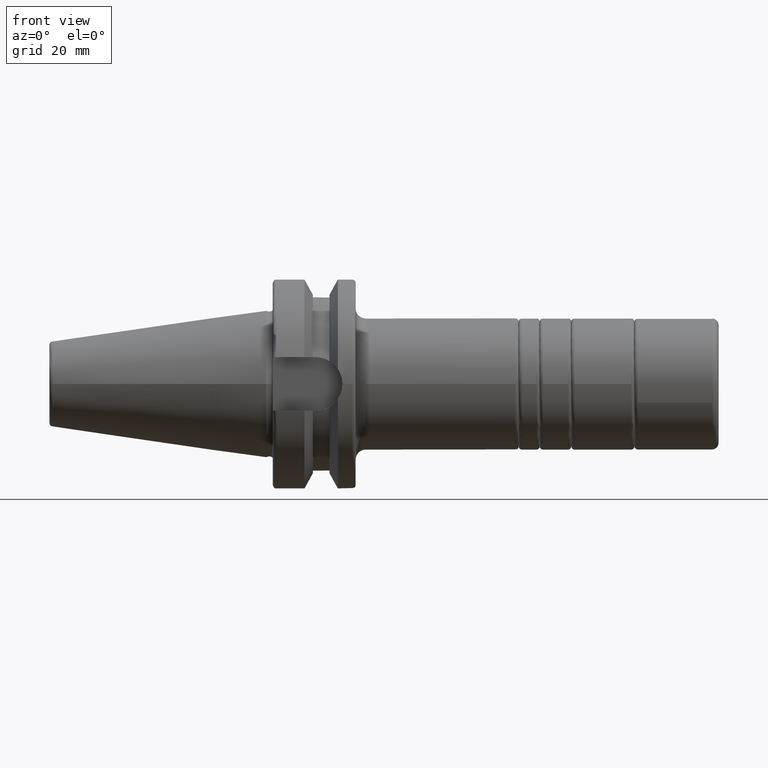
[diagram: clean part render]
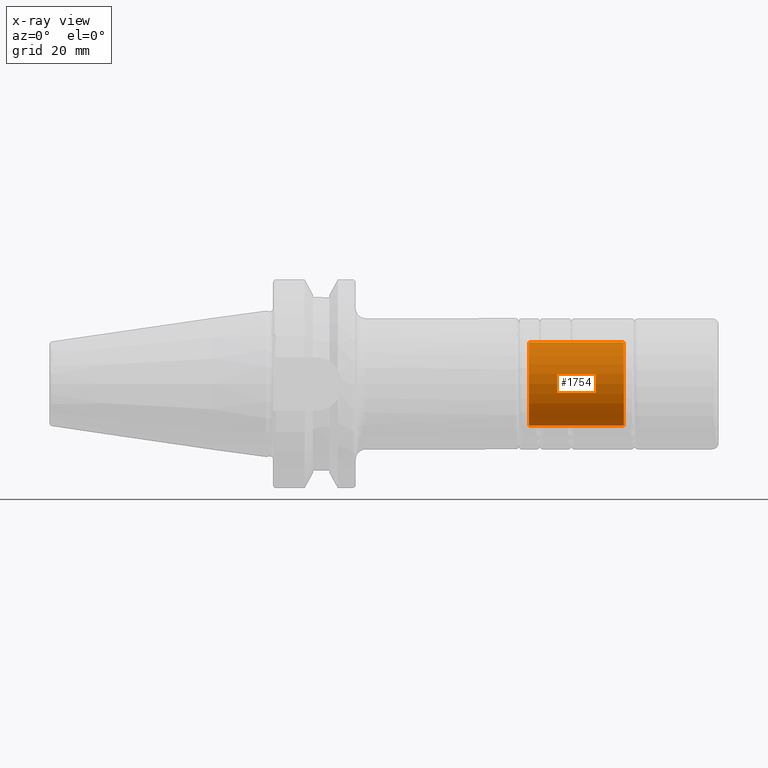
[diagram: x-ray — body ghosted, one internal face saturated and labeled with its STEP entity id]
A machine part, front view, then the same camera in x-ray: the body is ghosted and one INTERNAL B-rep face — a face not visible from any outside direction — is saturated and labeled: STEP entity #1754.
In plain terms, the highlighted cylindrical surface (bore or boss wall) has radius 12.7 mm, axis along (1, 0, 0).
Its self-contained STEP definition (entity closure, byte-faithful):
#176=FACE_OUTER_BOUND('',#285,.T.);
#285=EDGE_LOOP('',(#1217,#1218,#1219,#1220,#1221,#1222,#1223,#1224,#1225,
#1226,#1227));
#407=CIRCLE('',#2004,12.7);
#408=CIRCLE('',#2005,12.7);
#409=CIRCLE('',#2006,12.7);
#533=LINE('',#2871,#633);
#536=LINE('',#2877,#636);
#539=LINE('',#2926,#639);
#633=VECTOR('',#2254,10.);
#636=VECTOR('',#2259,10.);
#639=VECTOR('',#2272,12.7);
#731=B_SPLINE_CURVE_WITH_KNOTS('',3,(#2843,#2844,#2845,#2846,#2847,#2848,
#2849,#2850,#2851,#2852),.UNSPECIFIED.,.F.,.F.,(4,2,2,2,4),(0.,0.120157313671167,
0.240314627342334,0.360455140880268,0.480595654418201),.UNSPECIFIED.);
#732=B_SPLINE_CURVE_WITH_KNOTS('',3,(#2859,#2860,#2861,#2862,#2863,#2864,
#2865,#2866,#2867,#2868),.UNSPECIFIED.,.F.,.F.,(4,2,2,2,4),(0.480595654418201,
0.600736167956134,0.720876681494067,0.841033995165235,0.961191308836402),
 .UNSPECIFIED.);
#733=B_SPLINE_CURVE_WITH_KNOTS('',3,(#2883,#2884,#2885,#2886),
 .UNSPECIFIED.,.F.,.F.,(4,4),(-0.103736205813407,0.),.UNSPECIFIED.);
#737=B_SPLINE_CURVE_WITH_KNOTS('',3,(#2916,#2917,#2918,#2919),
 .UNSPECIFIED.,.F.,.F.,(4,4),(0.961191308836402,1.06492751477734),
 .UNSPECIFIED.);
#753=VERTEX_POINT('',#2841);
#754=VERTEX_POINT('',#2842);
#757=VERTEX_POINT('',#2857);
#758=VERTEX_POINT('',#2870);
#760=VERTEX_POINT('',#2876);
#762=VERTEX_POINT('',#2882);
#765=VERTEX_POINT('',#2909);
#766=VERTEX_POINT('',#2923);
#767=VERTEX_POINT('',#2925);
#928=EDGE_CURVE('',#753,#754,#731,.T.);
#932=EDGE_CURVE('',#754,#757,#732,.T.);
#933=EDGE_CURVE('',#757,#758,#533,.T.);
#936=EDGE_CURVE('',#760,#753,#536,.T.);
#939=EDGE_CURVE('',#762,#760,#733,.T.);
#943=EDGE_CURVE('',#758,#765,#737,.T.);
#945=EDGE_CURVE('',#766,#766,#407,.T.);
#946=EDGE_CURVE('',#766,#767,#539,.T.);
#947=EDGE_CURVE('',#767,#762,#408,.T.);
#948=EDGE_CURVE('',#765,#767,#409,.T.);
#1217=ORIENTED_EDGE('',*,*,#945,.F.);
#1218=ORIENTED_EDGE('',*,*,#946,.T.);
#1219=ORIENTED_EDGE('',*,*,#947,.T.);
#1220=ORIENTED_EDGE('',*,*,#939,.T.);
#1221=ORIENTED_EDGE('',*,*,#936,.T.);
#1222=ORIENTED_EDGE('',*,*,#928,.T.);
#1223=ORIENTED_EDGE('',*,*,#932,.T.);
#1224=ORIENTED_EDGE('',*,*,#933,.T.);
#1225=ORIENTED_EDGE('',*,*,#943,.T.);
#1226=ORIENTED_EDGE('',*,*,#948,.T.);
#1227=ORIENTED_EDGE('',*,*,#946,.F.);
#1722=CYLINDRICAL_SURFACE('',#2003,12.7);
#1754=ADVANCED_FACE('',(#176),#1722,.T.);
#2003=AXIS2_PLACEMENT_3D('',#2922,#2268,#2269);
#2004=AXIS2_PLACEMENT_3D('',#2924,#2270,#2271);
#2005=AXIS2_PLACEMENT_3D('',#2927,#2273,#2274);
#2006=AXIS2_PLACEMENT_3D('',#2928,#2275,#2276);
#2254=DIRECTION('',(-1.,0.,0.));
#2259=DIRECTION('',(1.,0.,0.));
#2268=DIRECTION('center_axis',(1.,0.,0.));
#2269=DIRECTION('ref_axis',(0.,1.,0.));
#2270=DIRECTION('center_axis',(1.,0.,0.));
#2271=DIRECTION('ref_axis',(0.,0.,-1.));
#2272=DIRECTION('',(-1.,0.,0.));
#2273=DIRECTION('center_axis',(1.,0.,0.));
#2274=DIRECTION('ref_axis',(0.,0.,-1.));
#2275=DIRECTION('center_axis',(1.,0.,0.));
#2276=DIRECTION('ref_axis',(0.,0.,-1.));
#2841=CARTESIAN_POINT('',(102.025,12.2967221242085,-3.17500000000001));
#2842=CARTESIAN_POINT('',(105.2,12.7,9.86076131526265E-30));
#2843=CARTESIAN_POINT('Ctrl Pts',(102.025,12.2967221242085,-3.17500000000001));
#2844=CARTESIAN_POINT('Ctrl Pts',(102.425524378904,12.2967221242085,-3.17500000000001));
#2845=CARTESIAN_POINT('Ctrl Pts',(102.851521422933,12.3183289150355,-3.09460599673562));
#2846=CARTESIAN_POINT('Ctrl Pts',(103.633234924972,12.395342169481,-2.77007315274374));
#2847=CARTESIAN_POINT('Ctrl Pts',(103.989107243188,12.4495261713938,-2.52602081734698));
#2848=CARTESIAN_POINT('Ctrl Pts',(104.550981534582,12.5504417732009,-1.96414652595212));
#2849=CARTESIAN_POINT('Ctrl Pts',(104.795064498301,12.6038769950257,-1.6082578471115));
#2850=CARTESIAN_POINT('Ctrl Pts',(105.11961970302,12.6791612081101,-0.826486332217384));
#2851=CARTESIAN_POINT('Ctrl Pts',(105.2,12.7,-0.400468378459793));
#2852=CARTESIAN_POINT('Ctrl Pts',(105.2,12.7,-1.57512891618694E-14));
#2857=CARTESIAN_POINT('',(102.025,12.2967221242086,3.17499999999999));
#2859=CARTESIAN_POINT('Ctrl Pts',(105.2,12.7,-1.4432899320127E-14));
#2860=CARTESIAN_POINT('Ctrl Pts',(105.2,12.7,0.400468378459763));
#2861=CARTESIAN_POINT('Ctrl Pts',(105.11961970302,12.6791612081101,0.826486332217358));
#2862=CARTESIAN_POINT('Ctrl Pts',(104.795064498301,12.6038769950257,1.60825784711147));
#2863=CARTESIAN_POINT('Ctrl Pts',(104.550981534582,12.5504417732009,1.96414652595209));
#2864=CARTESIAN_POINT('Ctrl Pts',(103.989107243188,12.4495261713938,2.52602081734696));
#2865=CARTESIAN_POINT('Ctrl Pts',(103.633234924972,12.395342169481,2.77007315274371));
#2866=CARTESIAN_POINT('Ctrl Pts',(102.851521422933,12.3183289150355,3.09460599673559));
#2867=CARTESIAN_POINT('Ctrl Pts',(102.425524378904,12.2967221242086,3.17499999999999));
#2868=CARTESIAN_POINT('Ctrl Pts',(102.025,12.2967221242086,3.17499999999999));
#2870=CARTESIAN_POINT('',(80.375,12.2967221242085,3.175));
#2871=CARTESIAN_POINT('',(93.6348076211353,12.2967221242086,3.17499999999999));
#2876=CARTESIAN_POINT('',(80.375,12.2967221242086,-3.175));
#2877=CARTESIAN_POINT('',(93.6348076211353,12.2967221242085,-3.17500000000001));
#2882=CARTESIAN_POINT('',(79.3196152422707,12.3419290221119,-2.99445955276616));
#2883=CARTESIAN_POINT('Ctrl Pts',(79.3196152422706,12.3419290221119,-2.99445955276616));
#2884=CARTESIAN_POINT('Ctrl Pts',(79.6641268734203,12.312469095408,-3.11588123770424));
#2885=CARTESIAN_POINT('Ctrl Pts',(80.0292126472887,12.2967221242085,-3.175));
#2886=CARTESIAN_POINT('Ctrl Pts',(80.375,12.2967221242085,-3.175));
#2909=CARTESIAN_POINT('',(79.3196152422707,12.3419290221119,2.99445955276616));
#2916=CARTESIAN_POINT('Ctrl Pts',(80.375,12.2967221242085,3.175));
#2917=CARTESIAN_POINT('Ctrl Pts',(80.0292126468636,12.2967221242085,3.175));
#2918=CARTESIAN_POINT('Ctrl Pts',(79.6641268756518,12.3124690952172,3.11588123849075));
#2919=CARTESIAN_POINT('Ctrl Pts',(79.3196152422707,12.3419290221119,2.99445955276616));
#2922=CARTESIAN_POINT('Origin',(93.6348076211353,0.,0.));
#2923=CARTESIAN_POINT('',(107.95,-12.7,-1.55530143491714E-15));
#2924=CARTESIAN_POINT('Origin',(107.95,0.,0.));
#2925=CARTESIAN_POINT('',(79.3196152422706,-12.7,-1.55530143491714E-15));
#2926=CARTESIAN_POINT('',(93.6348076211353,-12.7,-1.55530143491714E-15));
#2927=CARTESIAN_POINT('Origin',(79.3196152422707,0.,0.));
#2928=CARTESIAN_POINT('Origin',(79.3196152422707,0.,0.));